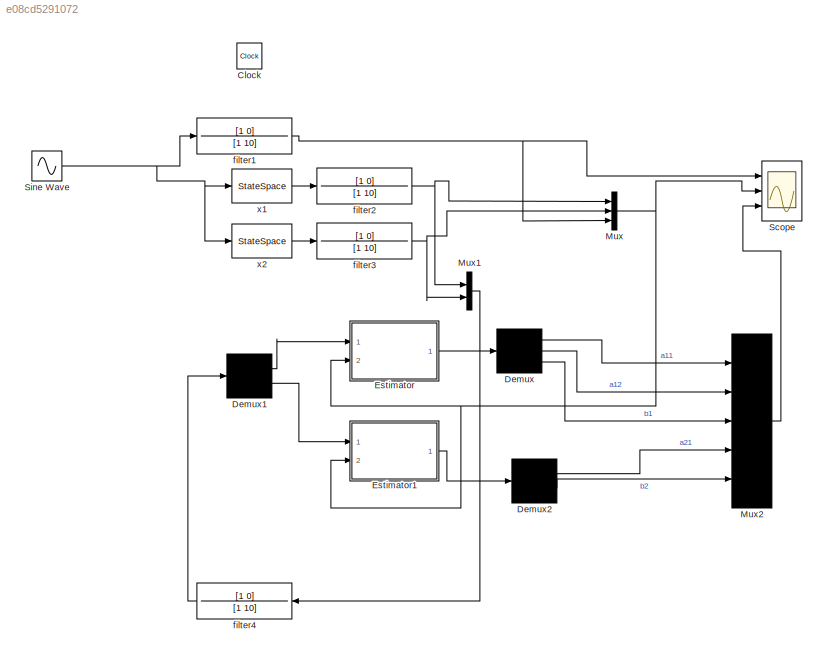
MODEL slx_e08cd5291072
KIND model
CONFIG AbsTol = auto
CONFIG FixedStep = auto
CONFIG MaxStep = auto
CONFIG MinStep = auto
CONFIG RelTol = 1e-3
CONFIG SampleTimeConstraint = Unconstrained
CONFIG Solver = VariableStepAuto
CONFIG SolverMode = Auto
CONFIG SolverName = VariableStepAuto
CONFIG StartTime = 0.0
CONFIG StopTime = 5000
BLOCK [Clock] Clock
  Decimation = 250
BLOCK [Demux] Demux
  Outputs = 3
  Ports = [1, 3]
BLOCK [Demux] Demux1
  Outputs = 2
  Ports = [1, 2]
BLOCK [Demux] Demux2
  Outputs = 2
  Ports = [1, 2]
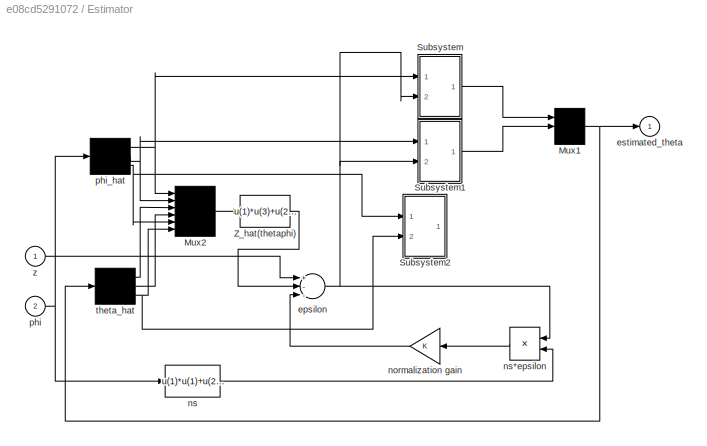
BLOCK [SubSystem] Estimator
  Ports = [2, 1]
  RequestExecContextInheritance = off
  ShowPortLabels = none
  Variant = off
BLOCK [Mux] Estimator/Mux1
  Inputs = 3
  Ports = [3, 1]
BLOCK [Mux] Estimator/Mux2
  Inputs = 6
  Ports = [6, 1]
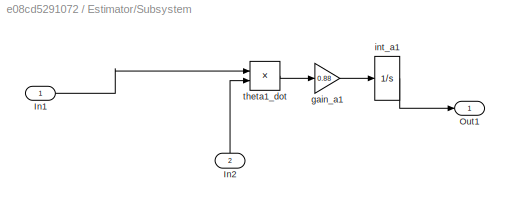
BLOCK [SubSystem] Estimator/Subsystem
  Ports = [2, 1]
  RequestExecContextInheritance = off
  Variant = off
BLOCK [Inport] Estimator/Subsystem/In1
  IconDisplay = Port number
BLOCK [Inport] Estimator/Subsystem/In2
  IconDisplay = Port number
  Port = 2
BLOCK [Outport] Estimator/Subsystem/Out1
  IconDisplay = Port number
BLOCK [Gain] Estimator/Subsystem/gain_a1
  Gain = 0.88
BLOCK [Integrator] Estimator/Subsystem/int_a1
  Ports = [1, 1]
BLOCK [Product] Estimator/Subsystem/theta1_dot
  Ports = [2, 1]
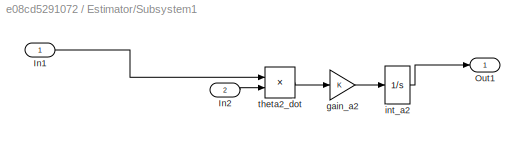
BLOCK [SubSystem] Estimator/Subsystem1
  Ports = [2, 1]
  RequestExecContextInheritance = off
  Variant = off
BLOCK [Inport] Estimator/Subsystem1/In1
  IconDisplay = Port number
BLOCK [Inport] Estimator/Subsystem1/In2
  IconDisplay = Port number
  Port = 2
BLOCK [Outport] Estimator/Subsystem1/Out1
  IconDisplay = Port number
BLOCK [Gain] Estimator/Subsystem1/gain_a2
BLOCK [Integrator] Estimator/Subsystem1/int_a2
  Ports = [1, 1]
BLOCK [Product] Estimator/Subsystem1/theta2_dot
  Ports = [2, 1]
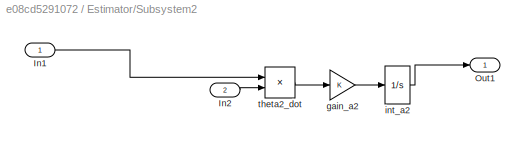
BLOCK [SubSystem] Estimator/Subsystem2
  Ports = [2, 1]
  RequestExecContextInheritance = off
  Variant = off
BLOCK [Inport] Estimator/Subsystem2/In1
  IconDisplay = Port number
BLOCK [Inport] Estimator/Subsystem2/In2
  IconDisplay = Port number
  Port = 2
BLOCK [Outport] Estimator/Subsystem2/Out1
  IconDisplay = Port number
BLOCK [Gain] Estimator/Subsystem2/gain_a2
BLOCK [Integrator] Estimator/Subsystem2/int_a2
  Ports = [1, 1]
BLOCK [Product] Estimator/Subsystem2/theta2_dot
  Ports = [2, 1]
BLOCK [Fcn] Estimator/Z_hat(thetaphi)
  Expr = u(1)*u(3)+u(2)*u(4)+u(5)*u(6)
BLOCK [Sum] Estimator/epsilon
  Inputs = +--
  Ports = [3, 1]
BLOCK [Outport] Estimator/estimated_theta
  IconDisplay = Port number
BLOCK [Gain] Estimator/normalization gain
BLOCK [Fcn] Estimator/ns
  Expr = u(1)*u(1)+u(2)*u(2)
BLOCK [Product] Estimator/ns*epsilon
  Ports = [2, 1]
BLOCK [Inport] Estimator/phi
  IconDisplay = Port number
  Port = 2
BLOCK [Demux] Estimator/phi_hat
  Outputs = 3
  Ports = [1, 3]
BLOCK [Demux] Estimator/theta_hat
  Outputs = 3
  Ports = [1, 3]
BLOCK [Inport] Estimator/z
  IconDisplay = Port number
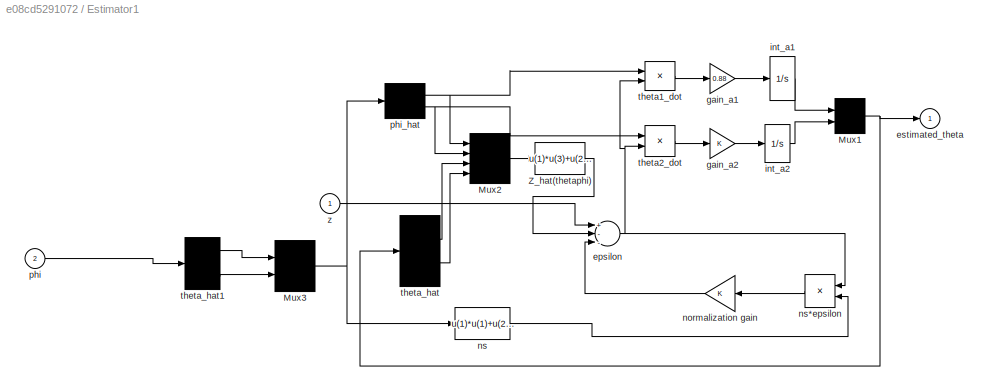
BLOCK [SubSystem] Estimator1
  Ports = [2, 1]
  RequestExecContextInheritance = off
  ShowPortLabels = none
  Variant = off
BLOCK [Mux] Estimator1/Mux1
  Inputs = 2
  Ports = [2, 1]
BLOCK [Mux] Estimator1/Mux2
  Ports = [4, 1]
BLOCK [Mux] Estimator1/Mux3
  Inputs = 2
  Ports = [2, 1]
BLOCK [Fcn] Estimator1/Z_hat(thetaphi)
  Expr = u(1)*u(3)+u(2)*u(4)
BLOCK [Sum] Estimator1/epsilon
  Inputs = +--
  Ports = [3, 1]
BLOCK [Outport] Estimator1/estimated_theta
  IconDisplay = Port number
BLOCK [Gain] Estimator1/gain_a1
  Gain = 0.88
BLOCK [Gain] Estimator1/gain_a2
BLOCK [Integrator] Estimator1/int_a1
  Ports = [1, 1]
BLOCK [Integrator] Estimator1/int_a2
  Ports = [1, 1]
BLOCK [Gain] Estimator1/normalization gain
BLOCK [Fcn] Estimator1/ns
  Expr = u(1)*u(1)+u(2)*u(2)
BLOCK [Product] Estimator1/ns*epsilon
  Ports = [2, 1]
BLOCK [Inport] Estimator1/phi
  IconDisplay = Port number
  Port = 2
BLOCK [Demux] Estimator1/phi_hat
  Outputs = 2
  Ports = [1, 2]
BLOCK [Product] Estimator1/theta1_dot
  Ports = [2, 1]
BLOCK [Product] Estimator1/theta2_dot
  Ports = [2, 1]
BLOCK [Demux] Estimator1/theta_hat
  Outputs = 2
  Ports = [1, 2]
BLOCK [Demux] Estimator1/theta_hat1
  Outputs = 3
  Ports = [1, 3]
BLOCK [Inport] Estimator1/z
  IconDisplay = Port number
BLOCK [Mux] Mux
  DisplayOption = bar
  Inputs = 3
  Ports = [3, 1]
BLOCK [Mux] Mux1
  DisplayOption = bar
  Inputs = 2
  Ports = [2, 1]
BLOCK [Mux] Mux2
  Inputs = 5
  Ports = [5, 1]
BLOCK [Scope] Scope
  NumInputPorts = 3
  Ports = [3]
  ScopeSpecificationString = Simulink.scopes.TimeScopeBlockCfg('CurrentConfiguration', extmgr.ConfigurationSet(extmgr.Configuration('Core','General UI',true),extmgr.Configuration('Core','Source UI',true),extmgr.Configuration('Sources','WiredSimulink',true),extmgr.Configuration('Visuals','Time Domain',true,'SerializedDisplays',{struct('MinYLimReal','-0.24997','MaxYLimReal','2.25','YLabelReal','','MinYLimMag','0.00000','MaxYLim...<+3029ch>
BLOCK [Sin] Sine Wave
  Amplitude = 10
  Frequency = 2
  Ports = [0, 1]
  SampleTime = 0
BLOCK [TransferFcn] filter1
  Denominator = [1 10]
  Numerator = [1 0]
BLOCK [TransferFcn] filter2
  Denominator = [1 10]
  Numerator = [1 0]
BLOCK [TransferFcn] filter3
  Denominator = [1 10]
  Numerator = [1 0]
BLOCK [TransferFcn] filter4
  Denominator = [1 10]
  Numerator = [1 0]
BLOCK [StateSpace] x1
  A = [-0.25 3 ; -5 0 ]
  B = [1  ; 2.2]
  C = [1 0]
  D = 0
  Ports = [1, 1]
  X0 = 0
BLOCK [StateSpace] x2
  A = [-0.25 3 ; -5 0 ]
  B = [1  ; 2.2]
  C = [ 0 1]
  D = 0
  Ports = [1, 1]
  X0 = 0
LINE Demux1:1 -> Estimator:1
LINE Demux1:2 -> Estimator1:1
LINE Demux2:1 -> Mux2:4
LINE Demux2:2 -> Mux2:5
LINE Demux:1 -> Mux2:1
LINE Demux:2 -> Mux2:2
LINE Demux:3 -> Mux2:3
NET Estimator/Mux1:1 -> Estimator/estimated_theta:1, Estimator/theta_hat:1
LINE Estimator/Mux2:1 -> Estimator/Z_hat(thetaphi):1
LINE Estimator/Subsystem/In1:1 -> Estimator/Subsystem/theta1_dot:1
LINE Estimator/Subsystem/In2:1 -> Estimator/Subsystem/theta1_dot:2
LINE Estimator/Subsystem/gain_a1:1 -> Estimator/Subsystem/int_a1:1
LINE Estimator/Subsystem/int_a1:1 -> Estimator/Subsystem/Out1:1
LINE Estimator/Subsystem/theta1_dot:1 -> Estimator/Subsystem/gain_a1:1
LINE Estimator/Subsystem1/In1:1 -> Estimator/Subsystem1/theta2_dot:1
LINE Estimator/Subsystem1/In2:1 -> Estimator/Subsystem1/theta2_dot:2
LINE Estimator/Subsystem1/gain_a2:1 -> Estimator/Subsystem1/int_a2:1
LINE Estimator/Subsystem1/int_a2:1 -> Estimator/Subsystem1/Out1:1
LINE Estimator/Subsystem1/theta2_dot:1 -> Estimator/Subsystem1/gain_a2:1
LINE Estimator/Subsystem1:1 -> Estimator/Mux1:2
LINE Estimator/Subsystem2/In1:1 -> Estimator/Subsystem2/theta2_dot:1
LINE Estimator/Subsystem2/In2:1 -> Estimator/Subsystem2/theta2_dot:2
LINE Estimator/Subsystem2/gain_a2:1 -> Estimator/Subsystem2/int_a2:1
LINE Estimator/Subsystem2/int_a2:1 -> Estimator/Subsystem2/Out1:1
LINE Estimator/Subsystem2/theta2_dot:1 -> Estimator/Subsystem2/gain_a2:1
LINE Estimator/Subsystem:1 -> Estimator/Mux1:1
LINE Estimator/Z_hat(thetaphi):1 -> Estimator/epsilon:2
NET Estimator/epsilon:1 -> Estimator/Subsystem1:2, Estimator/Subsystem:2, Estimator/ns*epsilon:1
LINE Estimator/normalization gain:1 -> Estimator/epsilon:3
LINE Estimator/ns*epsilon:1 -> Estimator/normalization gain:1
LINE Estimator/ns:1 -> Estimator/ns*epsilon:2
NET Estimator/phi:1 -> Estimator/ns:1, Estimator/phi_hat:1
NET Estimator/phi_hat:1 -> Estimator/Mux2:1, Estimator/Subsystem:1
NET Estimator/phi_hat:2 -> Estimator/Mux2:2, Estimator/Subsystem1:1
NET Estimator/phi_hat:3 -> Estimator/Mux2:5, Estimator/Subsystem2:1
LINE Estimator/theta_hat:1 -> Estimator/Mux2:3
LINE Estimator/theta_hat:2 -> Estimator/Mux2:4
NET Estimator/theta_hat:3 -> Estimator/Mux2:6, Estimator/Subsystem2:2
LINE Estimator/z:1 -> Estimator/epsilon:1
NET Estimator1/Mux1:1 -> Estimator1/estimated_theta:1, Estimator1/theta_hat:1
LINE Estimator1/Mux2:1 -> Estimator1/Z_hat(thetaphi):1
NET Estimator1/Mux3:1 -> Estimator1/ns:1, Estimator1/phi_hat:1
LINE Estimator1/Z_hat(thetaphi):1 -> Estimator1/epsilon:2
NET Estimator1/epsilon:1 -> Estimator1/ns*epsilon:1, Estimator1/theta1_dot:2, Estimator1/theta2_dot:2
LINE Estimator1/gain_a1:1 -> Estimator1/int_a1:1
LINE Estimator1/gain_a2:1 -> Estimator1/int_a2:1
LINE Estimator1/int_a1:1 -> Estimator1/Mux1:1
LINE Estimator1/int_a2:1 -> Estimator1/Mux1:2
LINE Estimator1/normalization gain:1 -> Estimator1/epsilon:3
LINE Estimator1/ns*epsilon:1 -> Estimator1/normalization gain:1
LINE Estimator1/ns:1 -> Estimator1/ns*epsilon:2
LINE Estimator1/phi:1 -> Estimator1/theta_hat1:1
NET Estimator1/phi_hat:1 -> Estimator1/Mux2:1, Estimator1/theta1_dot:1
NET Estimator1/phi_hat:2 -> Estimator1/Mux2:2, Estimator1/theta2_dot:1
LINE Estimator1/theta1_dot:1 -> Estimator1/gain_a1:1
LINE Estimator1/theta2_dot:1 -> Estimator1/gain_a2:1
LINE Estimator1/theta_hat1:1 -> Estimator1/Mux3:1
LINE Estimator1/theta_hat1:3 -> Estimator1/Mux3:2
LINE Estimator1/theta_hat:1 -> Estimator1/Mux2:3
LINE Estimator1/theta_hat:2 -> Estimator1/Mux2:4
LINE Estimator1/z:1 -> Estimator1/epsilon:1
LINE Estimator1:1 -> Demux2:1
LINE Estimator:1 -> Demux:1
LINE Mux1:1 -> filter4:1
LINE Mux2:1 -> Scope:3
NET Mux:1 -> Estimator1:2, Estimator:2, Scope:2
NET Sine Wave:1 -> filter1:1, x1:1, x2:1
NET filter1:1 -> Mux:3, Scope:1
NET filter2:1 -> Mux1:1, Mux:1
NET filter3:1 -> Mux1:2, Mux:2
LINE filter4:1 -> Demux1:1
LINE x1:1 -> filter2:1
LINE x2:1 -> filter3:1
note: NET lines group one-source signal fan-out (src -> all destinations, sorted); 1:1 wires keep LINE
